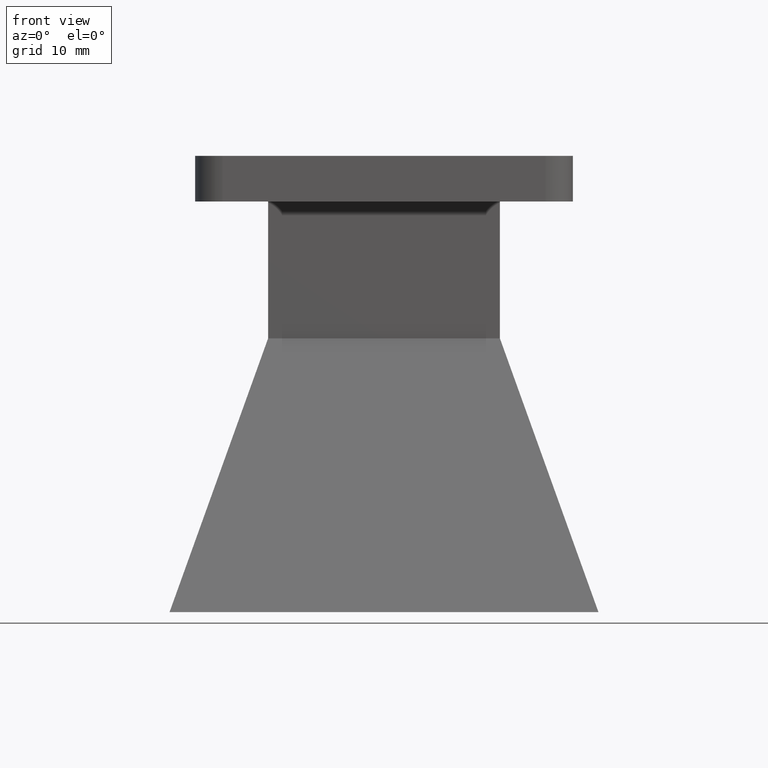
[diagram: clean part render]
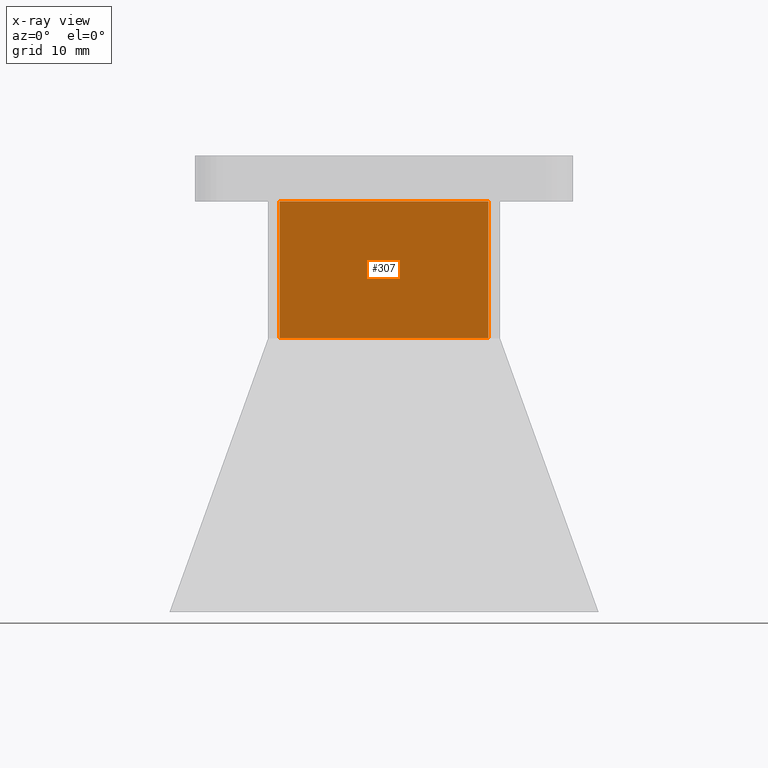
[diagram: x-ray — body ghosted, one internal face saturated and labeled with its STEP entity id]
A machine part, front view, then the same camera in x-ray: the body is ghosted and one INTERNAL B-rep face — a face not visible from any outside direction — is saturated and labeled: STEP entity #307.
In plain terms, the highlighted planar face has unit normal (0, -1, -0).
Its self-contained STEP definition (entity closure, byte-faithful):
#2 = ORIENTED_EDGE ( 'NONE', *, *, #330, .T. ) ;
#39 = CARTESIAN_POINT ( 'NONE',  ( 0.4499999999999999600, 0.1999999999999999800, -2.692837138356194400 ) ) ;
#40 = VECTOR ( 'NONE', #400, 39.37007874015748100 ) ;
#73 = VERTEX_POINT ( 'NONE', #1171 ) ;
#109 = CARTESIAN_POINT ( 'NONE',  ( -0.4499999999999999600, 0.1999999999999999800, -2.692837138356194400 ) ) ;
#120 = CARTESIAN_POINT ( 'NONE',  ( 0.4499999999999999600, 0.1999999999999999800, -2.692837138356194400 ) ) ;
#122 = DIRECTION ( 'NONE',  ( -0.0000000000000000000, -0.0000000000000000000, 1.000000000000000000 ) ) ;
#147 = CARTESIAN_POINT ( 'NONE',  ( 0.4499999999999999600, 0.1999999999999999800, -0.7874015748031497600 ) ) ;
#149 = CARTESIAN_POINT ( 'NONE',  ( -0.4499999999999999600, 0.1999999999999999800, -0.7874015748031497600 ) ) ;
#150 = LINE ( 'NONE', #147, #244 ) ;
#163 = CARTESIAN_POINT ( 'NONE',  ( -0.4499999999999999600, 0.1999999999999999800, -0.1968503937007874100 ) ) ;
#244 = VECTOR ( 'NONE', #515, 39.37007874015748100 ) ;
#245 = LINE ( 'NONE', #995, #40 ) ;
#272 = LINE ( 'NONE', #109, #1136 ) ;
#274 = AXIS2_PLACEMENT_3D ( 'NONE', #39, #659, #754 ) ;
#307 = ADVANCED_FACE ( 'NONE', ( #469 ), #760, .T. ) ;
#330 = EDGE_CURVE ( 'NONE', #1130, #73, #1111, .T. ) ;
#394 = ORIENTED_EDGE ( 'NONE', *, *, #1138, .F. ) ;
#400 = DIRECTION ( 'NONE',  ( 1.000000000000000000, -0.0000000000000000000, -0.0000000000000000000 ) ) ;
#402 = DIRECTION ( 'NONE',  ( -0.0000000000000000000, -0.0000000000000000000, 1.000000000000000000 ) ) ;
#469 = FACE_OUTER_BOUND ( 'NONE', #1169, .T. ) ;
#515 = DIRECTION ( 'NONE',  ( -1.000000000000000000, 0.0000000000000000000, 0.0000000000000000000 ) ) ;
#600 = VERTEX_POINT ( 'NONE', #163 ) ;
#659 = DIRECTION ( 'NONE',  ( 0.0000000000000000000, -1.000000000000000000, -0.0000000000000000000 ) ) ;
#754 = DIRECTION ( 'NONE',  ( 0.0000000000000000000, 0.0000000000000000000, -1.000000000000000000 ) ) ;
#760 = PLANE ( 'NONE',  #274 ) ;
#829 = ORIENTED_EDGE ( 'NONE', *, *, #853, .F. ) ;
#845 = EDGE_CURVE ( 'NONE', #600, #73, #245, .T. ) ;
#853 = EDGE_CURVE ( 'NONE', #1053, #600, #272, .T. ) ;
#856 = VECTOR ( 'NONE', #402, 39.37007874015748100 ) ;
#872 = CARTESIAN_POINT ( 'NONE',  ( 0.4499999999999999600, 0.1999999999999999800, -0.7874015748031497600 ) ) ;
#995 = CARTESIAN_POINT ( 'NONE',  ( 0.4499999999999999600, 0.1999999999999999800, -0.1968503937007874100 ) ) ;
#1053 = VERTEX_POINT ( 'NONE', #149 ) ;
#1111 = LINE ( 'NONE', #120, #856 ) ;
#1129 = ORIENTED_EDGE ( 'NONE', *, *, #845, .F. ) ;
#1130 = VERTEX_POINT ( 'NONE', #872 ) ;
#1136 = VECTOR ( 'NONE', #122, 39.37007874015748100 ) ;
#1138 = EDGE_CURVE ( 'NONE', #1130, #1053, #150, .T. ) ;
#1169 = EDGE_LOOP ( 'NONE', ( #394, #2, #1129, #829 ) ) ;
#1171 = CARTESIAN_POINT ( 'NONE',  ( 0.4499999999999999600, 0.1999999999999999800, -0.1968503937007874100 ) ) ;